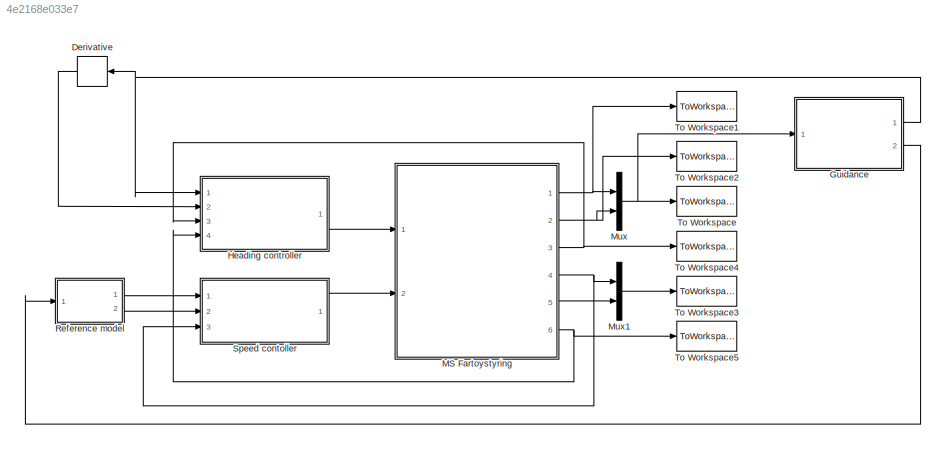
MODEL slx_4e2168e033e7
KIND model
CONFIG AbsTol = auto
CONFIG EnableMultiTasking = on
CONFIG FixedStep = auto
CONFIG MaxStep = auto
CONFIG MinStep = auto
CONFIG RelTol = 1e-3
CONFIG SampleTimeConstraint = Unconstrained
CONFIG Solver = ode45
CONFIG SolverName = ode45
CONFIG StartTime = tstart
CONFIG StopTime = tstop
BLOCK [Derivative] Derivative
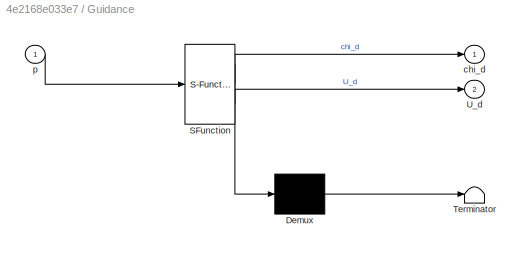
BLOCK [SubSystem] Guidance
  ErrorFcn = Stateflow.Translate.translate
  PermitHierarchicalResolution = ExplicitOnly
  Ports = [1, 2]
  RequestExecContextInheritance = off
  SFBlockType = MATLAB Function
  TreatAsAtomicUnit = on
BLOCK [Demux] Guidance/ Demux 
  Outputs = 1
  Ports = [1, 1]
BLOCK [S-Function] Guidance/ SFunction 
  EnableBusSupport = on
  FunctionName = sf_sfun
  PortCounts = [1 3]
  Ports = [1, 3]
  SFcnIsStateOwnerBlock = off
  SFunctionDeploymentMode = off
  Tag = Stateflow S-Function MSFartoystyring_1 2
BLOCK [Terminator] Guidance/ Terminator 
BLOCK [Outport] Guidance/U_d
  IconDisplay = Port number
  Port = 2
BLOCK [Outport] Guidance/chi_d
  IconDisplay = Port number
BLOCK [Inport] Guidance/p
  IconDisplay = Port number
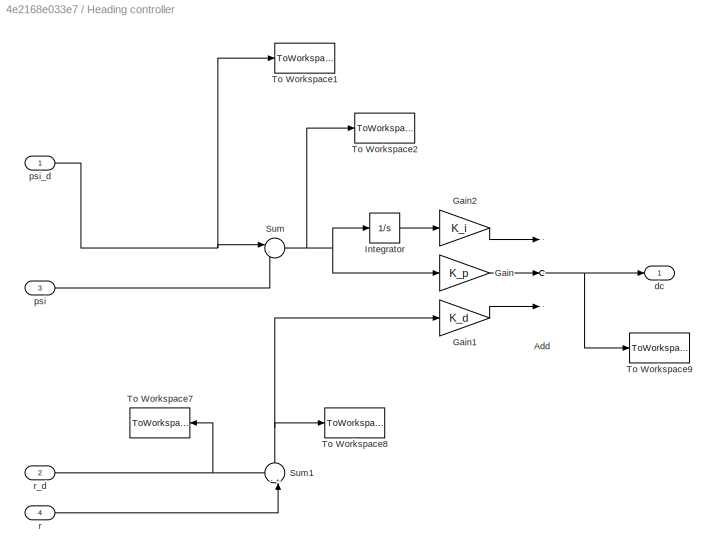
BLOCK [SubSystem] Heading controller
  Ports = [4, 1]
  RequestExecContextInheritance = off
BLOCK [Sum] Heading controller/Add
  InputSameDT = off
  Inputs = ---
  OutDataTypeStr = Inherit: Inherit via internal rule
  Ports = [3, 1]
  SaturateOnIntegerOverflow = off
BLOCK [Gain] Heading controller/Gain
  Gain = K_p
  OutDataTypeStr = Inherit: Inherit via internal rule
  ParamDataTypeStr = Inherit: Inherit via internal rule
  SaturateOnIntegerOverflow = off
BLOCK [Gain] Heading controller/Gain1
  Gain = K_d
  OutDataTypeStr = Inherit: Inherit via internal rule
  ParamDataTypeStr = Inherit: Inherit via internal rule
  SaturateOnIntegerOverflow = off
BLOCK [Gain] Heading controller/Gain2
  Gain = K_i
  OutDataTypeStr = Inherit: Inherit via internal rule
  ParamDataTypeStr = Inherit: Inherit via internal rule
  SaturateOnIntegerOverflow = off
BLOCK [Integrator] Heading controller/Integrator
  Ports = [1, 1]
BLOCK [Sum] Heading controller/Sum
  IconShape = round
  InputSameDT = off
  Inputs = |-+
  OutDataTypeStr = Inherit: Inherit via internal rule
  Ports = [2, 1]
  SaturateOnIntegerOverflow = off
BLOCK [Sum] Heading controller/Sum1
  IconShape = round
  InputSameDT = off
  Inputs = -+|
  OutDataTypeStr = Inherit: Inherit via internal rule
  Ports = [2, 1]
  SaturateOnIntegerOverflow = off
BLOCK [ToWorkspace] Heading controller/To Workspace1
  FixptAsFi = on
  MaxDataPoints = inf
  Ports = [1]
  SampleTime = -1
  SaveFormat = Timeseries
  VariableName = psi_d
BLOCK [ToWorkspace] Heading controller/To Workspace2
  FixptAsFi = on
  MaxDataPoints = inf
  Ports = [1]
  SampleTime = -1
  SaveFormat = Timeseries
  VariableName = psi_tilde
BLOCK [ToWorkspace] Heading controller/To Workspace7
  FixptAsFi = on
  MaxDataPoints = inf
  Ports = [1]
  SampleTime = -1
  SaveFormat = Timeseries
  VariableName = r_d
BLOCK [ToWorkspace] Heading controller/To Workspace8
  FixptAsFi = on
  MaxDataPoints = inf
  Ports = [1]
  SampleTime = -1
  SaveFormat = Timeseries
  VariableName = r_tilde
BLOCK [ToWorkspace] Heading controller/To Workspace9
  FixptAsFi = on
  MaxDataPoints = inf
  Ports = [1]
  SampleTime = -1
  SaveFormat = Timeseries
  VariableName = delta_c
BLOCK [Outport] Heading controller/dc
  IconDisplay = Port number
BLOCK [Inport] Heading controller/psi
  IconDisplay = Port number
  Port = 3
BLOCK [Inport] Heading controller/psi_d
  IconDisplay = Port number
BLOCK [Inport] Heading controller/r
  IconDisplay = Port number
  Port = 4
BLOCK [Inport] Heading controller/r_d
  IconDisplay = Port number
  Port = 2
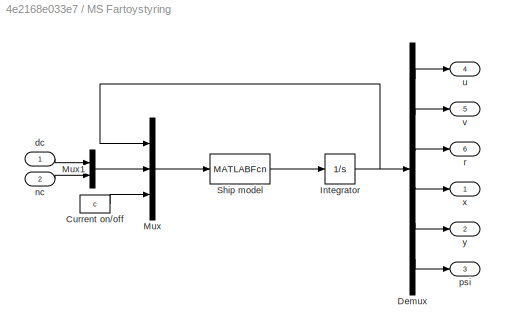
BLOCK [SubSystem] MS Fartoystyring
  Ports = [2, 6]
  RequestExecContextInheritance = off
BLOCK [Constant] MS Fartoystyring/Current on//off
  Value = c
BLOCK [Demux] MS Fartoystyring/Demux
  DisplayOption = bar
  Outputs = 6
  Ports = [1, 6]
BLOCK [Integrator] MS Fartoystyring/Integrator
  InitialCondition = [u0 v0 r0 x0 y0 psi0]'
  Ports = [1, 1]
BLOCK [Mux] MS Fartoystyring/Mux
  DisplayOption = bar
  Inputs = 3
  Ports = [3, 1]
BLOCK [Mux] MS Fartoystyring/Mux1
  DisplayOption = bar
  Inputs = 2
  Ports = [2, 1]
BLOCK [MATLABFcn] MS Fartoystyring/Ship model
  MATLABFcn = msfartoystyring(u(1:6), u(7:8), u(9))
  OutputDimensions = 6
  Ports = [1, 1]
BLOCK [Inport] MS Fartoystyring/dc
  IconDisplay = Port number
BLOCK [Inport] MS Fartoystyring/nc
  IconDisplay = Port number
  Port = 2
BLOCK [Outport] MS Fartoystyring/psi
  IconDisplay = Port number
  Port = 3
BLOCK [Outport] MS Fartoystyring/r
  IconDisplay = Port number
  Port = 6
BLOCK [Outport] MS Fartoystyring/u
  IconDisplay = Port number
  Port = 4
BLOCK [Outport] MS Fartoystyring/v
  IconDisplay = Port number
  Port = 5
BLOCK [Outport] MS Fartoystyring/x
  IconDisplay = Port number
BLOCK [Outport] MS Fartoystyring/y
  IconDisplay = Port number
  Port = 2
BLOCK [Mux] Mux
  DisplayOption = bar
  Inputs = 2
  Ports = [2, 1]
BLOCK [Mux] Mux1
  DisplayOption = bar
  Inputs = 2
  Ports = [2, 1]
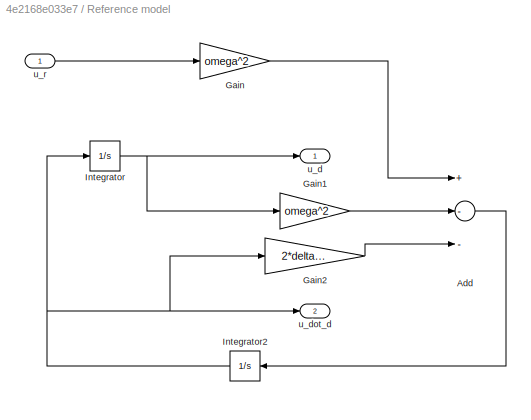
BLOCK [SubSystem] Reference model
  Ports = [1, 2]
  RequestExecContextInheritance = off
BLOCK [Sum] Reference model/Add
  InputSameDT = off
  Inputs = +--
  OutDataTypeStr = Inherit: Inherit via internal rule
  Ports = [3, 1]
  SaturateOnIntegerOverflow = off
BLOCK [Gain] Reference model/Gain
  Gain = omega^2
  OutDataTypeStr = Inherit: Inherit via internal rule
  ParamDataTypeStr = Inherit: Inherit via internal rule
  SaturateOnIntegerOverflow = off
BLOCK [Gain] Reference model/Gain1
  Gain = omega^2
  OutDataTypeStr = Inherit: Inherit via internal rule
  ParamDataTypeStr = Inherit: Inherit via internal rule
  SaturateOnIntegerOverflow = off
BLOCK [Gain] Reference model/Gain2
  Gain = 2*delta*omega
  OutDataTypeStr = Inherit: Inherit via internal rule
  ParamDataTypeStr = Inherit: Inherit via internal rule
  SaturateOnIntegerOverflow = off
BLOCK [Integrator] Reference model/Integrator
  Ports = [1, 1]
BLOCK [Integrator] Reference model/Integrator2
  Ports = [1, 1]
BLOCK [Outport] Reference model/u_d
  IconDisplay = Port number
BLOCK [Outport] Reference model/u_dot_d
  IconDisplay = Port number
  Port = 2
BLOCK [Inport] Reference model/u_r
  IconDisplay = Port number
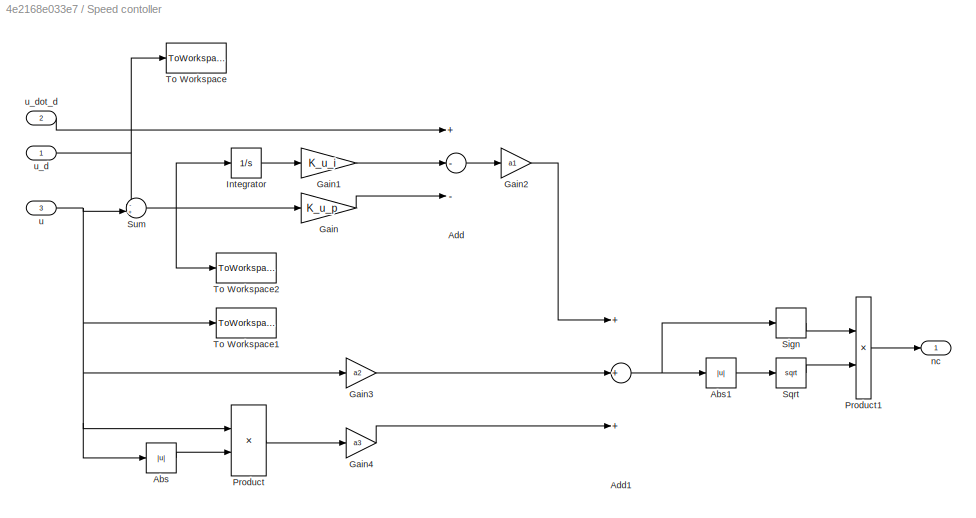
BLOCK [SubSystem] Speed contoller
  Ports = [3, 1]
  RequestExecContextInheritance = off
BLOCK [Abs] Speed contoller/Abs
  SaturateOnIntegerOverflow = off
BLOCK [Abs] Speed contoller/Abs1
  SaturateOnIntegerOverflow = off
BLOCK [Sum] Speed contoller/Add
  InputSameDT = off
  Inputs = +--
  OutDataTypeStr = Inherit: Inherit via internal rule
  Ports = [3, 1]
  SaturateOnIntegerOverflow = off
BLOCK [Sum] Speed contoller/Add1
  InputSameDT = off
  Inputs = +++
  OutDataTypeStr = Inherit: Inherit via internal rule
  Ports = [3, 1]
  SaturateOnIntegerOverflow = off
BLOCK [Gain] Speed contoller/Gain
  Gain = K_u_p
  OutDataTypeStr = Inherit: Inherit via internal rule
  ParamDataTypeStr = Inherit: Inherit via internal rule
  SaturateOnIntegerOverflow = off
BLOCK [Gain] Speed contoller/Gain1
  Gain = K_u_i
  OutDataTypeStr = Inherit: Inherit via internal rule
  ParamDataTypeStr = Inherit: Inherit via internal rule
  SaturateOnIntegerOverflow = off
BLOCK [Gain] Speed contoller/Gain2
  Gain = a1
  OutDataTypeStr = Inherit: Inherit via internal rule
  ParamDataTypeStr = Inherit: Inherit via internal rule
  SaturateOnIntegerOverflow = off
BLOCK [Gain] Speed contoller/Gain3
  Gain = a2
  OutDataTypeStr = Inherit: Inherit via internal rule
  ParamDataTypeStr = Inherit: Inherit via internal rule
  SaturateOnIntegerOverflow = off
BLOCK [Gain] Speed contoller/Gain4
  Gain = a3
  OutDataTypeStr = Inherit: Inherit via internal rule
  ParamDataTypeStr = Inherit: Inherit via internal rule
  SaturateOnIntegerOverflow = off
BLOCK [Integrator] Speed contoller/Integrator
  Ports = [1, 1]
BLOCK [Product] Speed contoller/Product
  InputSameDT = off
  OutDataTypeStr = Inherit: Inherit via internal rule
  Ports = [2, 1]
  RndMeth = Floor
  SaturateOnIntegerOverflow = off
BLOCK [Product] Speed contoller/Product1
  InputSameDT = off
  OutDataTypeStr = Inherit: Inherit via internal rule
  Ports = [2, 1]
  RndMeth = Floor
  SaturateOnIntegerOverflow = off
BLOCK [Signum] Speed contoller/Sign
BLOCK [Sqrt] Speed contoller/Sqrt
BLOCK [Sum] Speed contoller/Sum
  IconShape = round
  InputSameDT = off
  Inputs = -+|
  OutDataTypeStr = Inherit: Inherit via internal rule
  Ports = [2, 1]
  SaturateOnIntegerOverflow = off
BLOCK [ToWorkspace] Speed contoller/To Workspace
  FixptAsFi = on
  MaxDataPoints = inf
  Ports = [1]
  SampleTime = -1
  SaveFormat = Timeseries
  VariableName = u_d
BLOCK [ToWorkspace] Speed contoller/To Workspace1
  FixptAsFi = on
  MaxDataPoints = inf
  Ports = [1]
  SampleTime = -1
  SaveFormat = Timeseries
  VariableName = u
BLOCK [ToWorkspace] Speed contoller/To Workspace2
  FixptAsFi = on
  MaxDataPoints = inf
  Ports = [1]
  SampleTime = -1
  SaveFormat = Timeseries
  VariableName = u_tilde
BLOCK [Outport] Speed contoller/nc
  IconDisplay = Port number
BLOCK [Inport] Speed contoller/u
  IconDisplay = Port number
  Port = 3
BLOCK [Inport] Speed contoller/u_d
  IconDisplay = Port number
BLOCK [Inport] Speed contoller/u_dot_d
  IconDisplay = Port number
  Port = 2
BLOCK [ToWorkspace] To Workspace
  MaxDataPoints = inf
  Ports = [1]
  SampleTime = tsamp
  SaveFormat = Timeseries
  VariableName = p
BLOCK [ToWorkspace] To Workspace1
  MaxDataPoints = inf
  Ports = [1]
  SampleTime = tsamp
  VariableName = x
BLOCK [ToWorkspace] To Workspace2
  MaxDataPoints = inf
  Ports = [1]
  SampleTime = tsamp
  VariableName = y
BLOCK [ToWorkspace] To Workspace3
  MaxDataPoints = inf
  Ports = [1]
  SampleTime = tsamp
  SaveFormat = Timeseries
  VariableName = v
BLOCK [ToWorkspace] To Workspace4
  MaxDataPoints = inf
  Ports = [1]
  SampleTime = tsamp
  VariableName = psi
BLOCK [ToWorkspace] To Workspace5
  MaxDataPoints = inf
  Ports = [1]
  SampleTime = tsamp
  SaveFormat = Timeseries
  VariableName = r
LINE Derivative:1 -> Heading controller:2
NET Guidance:1 -> Derivative:1, Heading controller:1
LINE Guidance:2 -> Reference model:1
NET Heading controller/Add:1 -> Heading controller/To Workspace9:1, Heading controller/dc:1
LINE Heading controller/Gain1:1 -> Heading controller/Add:3
LINE Heading controller/Gain2:1 -> Heading controller/Add:1
LINE Heading controller/Gain:1 -> Heading controller/Add:2
LINE Heading controller/Integrator:1 -> Heading controller/Gain2:1
NET Heading controller/Sum1:1 -> Heading controller/Gain1:1, Heading controller/To Workspace8:1
NET Heading controller/Sum:1 -> Heading controller/Gain:1, Heading controller/Integrator:1, Heading controller/To Workspace2:1
LINE Heading controller/psi:1 -> Heading controller/Sum:2
NET Heading controller/psi_d:1 -> Heading controller/Sum:1, Heading controller/To Workspace1:1
LINE Heading controller/r:1 -> Heading controller/Sum1:2
NET Heading controller/r_d:1 -> Heading controller/Sum1:1, Heading controller/To Workspace7:1
LINE Heading controller:1 -> MS Fartoystyring:1
LINE MS Fartoystyring/Current on//off:1 -> MS Fartoystyring/Mux:3
LINE MS Fartoystyring/Demux:1 -> MS Fartoystyring/u:1
LINE MS Fartoystyring/Demux:2 -> MS Fartoystyring/v:1
LINE MS Fartoystyring/Demux:3 -> MS Fartoystyring/r:1
LINE MS Fartoystyring/Demux:4 -> MS Fartoystyring/x:1
LINE MS Fartoystyring/Demux:5 -> MS Fartoystyring/y:1
LINE MS Fartoystyring/Demux:6 -> MS Fartoystyring/psi:1
NET MS Fartoystyring/Integrator:1 -> MS Fartoystyring/Demux:1, MS Fartoystyring/Mux:1
LINE MS Fartoystyring/Mux1:1 -> MS Fartoystyring/Mux:2
LINE MS Fartoystyring/Mux:1 -> MS Fartoystyring/Ship model:1
LINE MS Fartoystyring/Ship model:1 -> MS Fartoystyring/Integrator:1
LINE MS Fartoystyring/dc:1 -> MS Fartoystyring/Mux1:1
LINE MS Fartoystyring/nc:1 -> MS Fartoystyring/Mux1:2
NET MS Fartoystyring:1 -> Mux:1, To Workspace1:1
NET MS Fartoystyring:2 -> Mux:2, To Workspace2:1
NET MS Fartoystyring:3 -> Heading controller:3, To Workspace4:1
NET MS Fartoystyring:4 -> Mux1:1, Speed contoller:3
LINE MS Fartoystyring:5 -> Mux1:2
NET MS Fartoystyring:6 -> Heading controller:4, To Workspace5:1
LINE Mux1:1 -> To Workspace3:1
NET Mux:1 -> Guidance:1, To Workspace:1
LINE Reference model/Add:1 -> Reference model/Integrator2:1
LINE Reference model/Gain1:1 -> Reference model/Add:2
LINE Reference model/Gain2:1 -> Reference model/Add:3
LINE Reference model/Gain:1 -> Reference model/Add:1
NET Reference model/Integrator2:1 -> Reference model/Gain2:1, Reference model/Integrator:1, Reference model/u_dot_d:1
NET Reference model/Integrator:1 -> Reference model/Gain1:1, Reference model/u_d:1
LINE Reference model/u_r:1 -> Reference model/Gain:1
LINE Reference model:1 -> Speed contoller:1
LINE Reference model:2 -> Speed contoller:2
LINE Speed contoller/Abs1:1 -> Speed contoller/Sqrt:1
LINE Speed contoller/Abs:1 -> Speed contoller/Product:2
NET Speed contoller/Add1:1 -> Speed contoller/Abs1:1, Speed contoller/Sign:1
LINE Speed contoller/Add:1 -> Speed contoller/Gain2:1
LINE Speed contoller/Gain1:1 -> Speed contoller/Add:2
LINE Speed contoller/Gain2:1 -> Speed contoller/Add1:1
LINE Speed contoller/Gain3:1 -> Speed contoller/Add1:2
LINE Speed contoller/Gain4:1 -> Speed contoller/Add1:3
LINE Speed contoller/Gain:1 -> Speed contoller/Add:3
LINE Speed contoller/Integrator:1 -> Speed contoller/Gain1:1
LINE Speed contoller/Product1:1 -> Speed contoller/nc:1
LINE Speed contoller/Product:1 -> Speed contoller/Gain4:1
LINE Speed contoller/Sign:1 -> Speed contoller/Product1:1
LINE Speed contoller/Sqrt:1 -> Speed contoller/Product1:2
NET Speed contoller/Sum:1 -> Speed contoller/Gain:1, Speed contoller/Integrator:1, Speed contoller/To Workspace2:1
NET Speed contoller/u:1 -> Speed contoller/Abs:1, Speed contoller/Gain3:1, Speed contoller/Product:1, Speed contoller/Sum:2, Speed contoller/To Workspace1:1
NET Speed contoller/u_d:1 -> Speed contoller/Sum:1, Speed contoller/To Workspace:1
LINE Speed contoller/u_dot_d:1 -> Speed contoller/Add:1
LINE Speed contoller:1 -> MS Fartoystyring:2
note: NET lines group one-source signal fan-out (src -> all destinations, sorted); 1:1 wires keep LINE
CHART Guidance states=1 transitions=1
  STATE_LABEL 'eML_blk_kernel()'
  STATE_LABEL 'SCRIPT:\nfunction [chi_d,U_d]= fcn(p)\n\npersistent k;\npersistent WP;\npersistent x_k;\npersistent y_k;\npersistent x_k_1;\npersistent y_k_1;\n\nx_t = p(1);\ny_t = p(2);\n\nif isempty(k)\n   WP = [0,-3500,-7000,-12000,-15000,-18000;0,-2500,-500,-3500,-500,-2000];\n   k = 1;\n   x_k = WP(1,k);\n   y_k = WP(2,k);\n   x_k_1 = WP(1,k+1);\n   y_k_1 = WP(2,k+1);\nend\n \nR_distantce = sqrt((x_t-x_k_1)^2+(y_t-y_k_1)^2);\n\nif ...<+523ch>'
